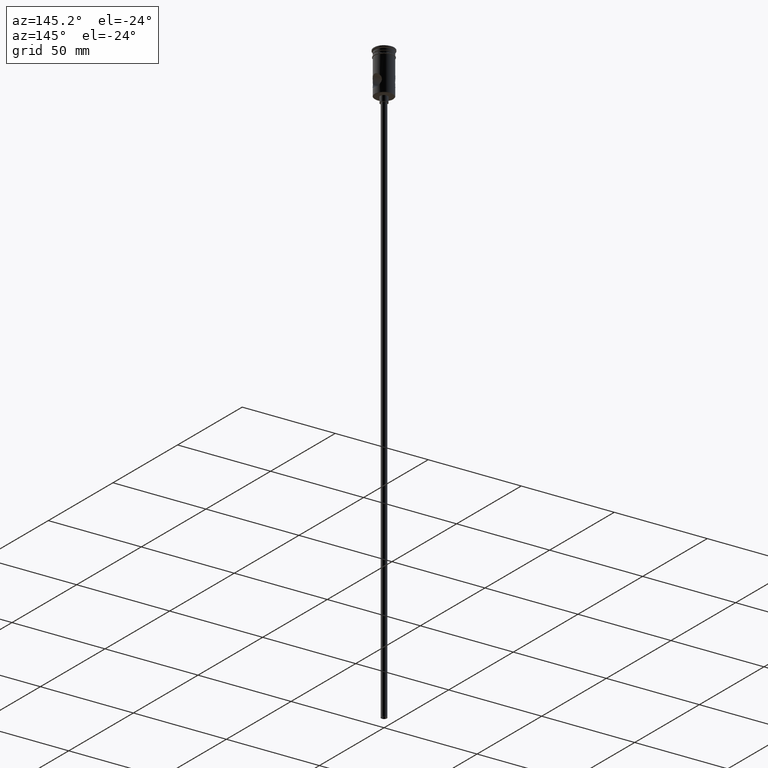
[diagram: clean part render]
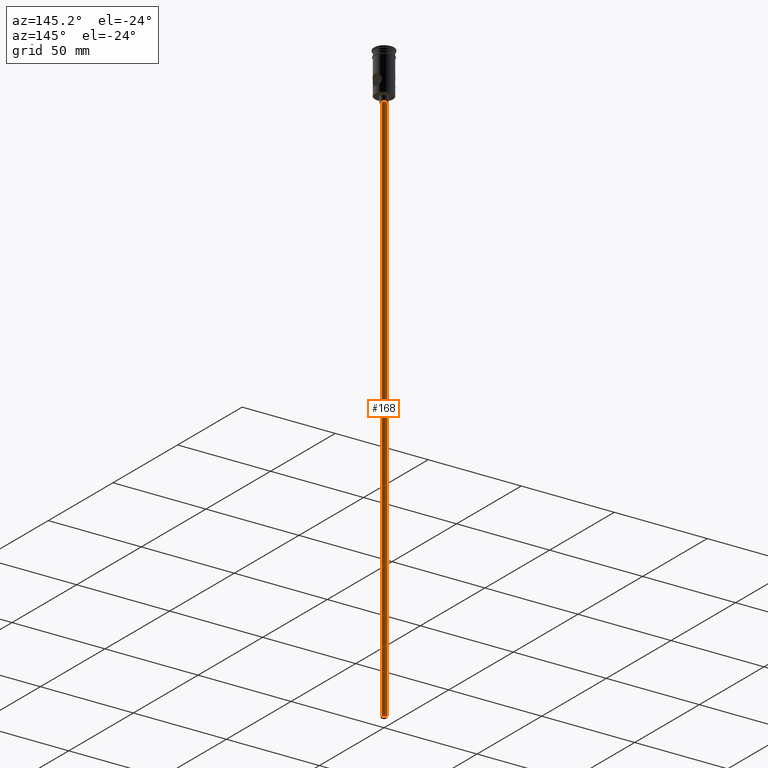
[diagram: same view with one face highlighted and labeled with its STEP entity id]
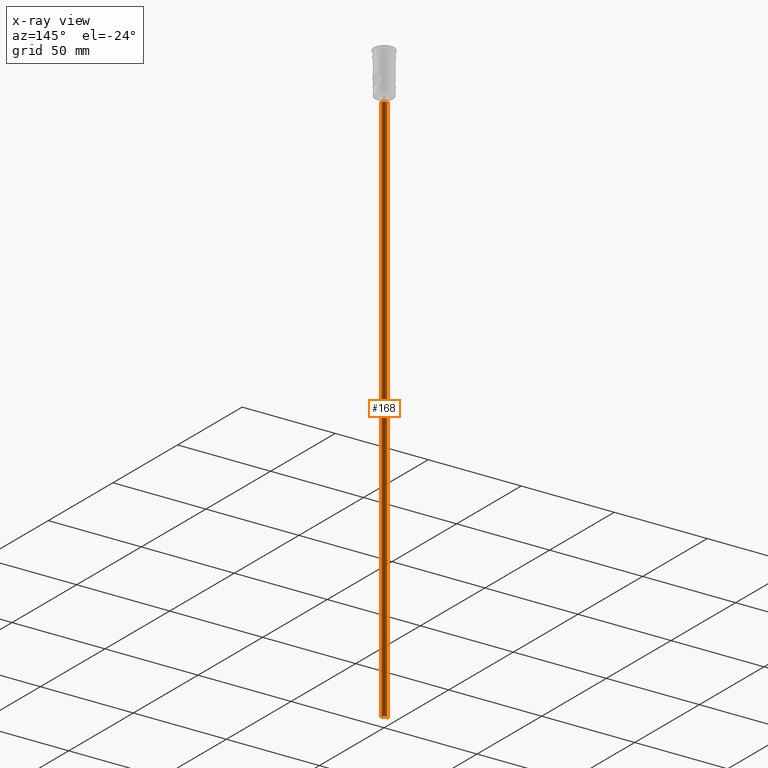
[diagram: x-ray of the same camera — body ghosted, the highlighted face saturated]
A machine part, auxiliary view. The second image highlights one B-rep face of the part: STEP entity #168.
The next image is the same camera in x-ray: the body ghosted, the highlighted face saturated — about 0% of this face is hidden behind the body in this view.
In plain terms, the highlighted cylindrical surface (edge-blend (fillet) strip) has radius 1.5 mm, axis along (-0, -0, 1).
Its self-contained STEP definition (entity closure, byte-faithful):
#21 = CIRCLE ( 'NONE', #256, 1.500000000000000222 ) ;
#64 = CARTESIAN_POINT ( 'NONE',  ( -1.500000000000000222, 1.836970198721030181E-16, -25.50000000000000000 ) ) ;
#88 = CARTESIAN_POINT ( 'NONE',  ( 1.500000000000000222, 0.000000000000000000, -25.50000000000000000 ) ) ;
#120 = EDGE_CURVE ( 'NONE', #407, #1075, #141, .T. ) ;
#134 = ORIENTED_EDGE ( 'NONE', *, *, #928, .F. ) ;
#141 = CIRCLE ( 'NONE', #392, 1.500000000000000222 ) ;
#156 = LINE ( 'NONE', #386, #1084 ) ;
#168 = ADVANCED_FACE ( 'NONE', ( #244 ), #809, .T. ) ;
#198 = CARTESIAN_POINT ( 'NONE',  ( 0.000000000000000000, 0.000000000000000000, -25.50000000000000000 ) ) ;
#244 = FACE_OUTER_BOUND ( 'NONE', #1061, .T. ) ;
#256 = AXIS2_PLACEMENT_3D ( 'NONE', #198, #874, #1329 ) ;
#258 = ORIENTED_EDGE ( 'NONE', *, *, #621, .T. ) ;
#304 = DIRECTION ( 'NONE',  ( -0.000000000000000000, -0.000000000000000000, 1.000000000000000000 ) ) ;
#386 = CARTESIAN_POINT ( 'NONE',  ( 1.500000000000000222, 0.000000000000000000, -322.5000000000000000 ) ) ;
#392 = AXIS2_PLACEMENT_3D ( 'NONE', #1363, #689, #594 ) ;
#401 = ORIENTED_EDGE ( 'NONE', *, *, #885, .T. ) ;
#407 = VERTEX_POINT ( 'NONE', #925 ) ;
#414 = CARTESIAN_POINT ( 'NONE',  ( -1.500000000000000222, 1.836970198721030181E-16, -322.5000000000000000 ) ) ;
#582 = DIRECTION ( 'NONE',  ( -0.000000000000000000, -0.000000000000000000, 1.000000000000000000 ) ) ;
#594 = DIRECTION ( 'NONE',  ( -1.000000000000000000, 0.000000000000000000, 0.000000000000000000 ) ) ;
#621 = EDGE_CURVE ( 'NONE', #1011, #1139, #21, .T. ) ;
#650 = CARTESIAN_POINT ( 'NONE',  ( 1.500000000000000222, 0.000000000000000000, -322.5000000000000000 ) ) ;
#689 = DIRECTION ( 'NONE',  ( 0.000000000000000000, 0.000000000000000000, -1.000000000000000000 ) ) ;
#696 = DIRECTION ( 'NONE',  ( 1.000000000000000000, 0.000000000000000000, 0.000000000000000000 ) ) ;
#698 = AXIS2_PLACEMENT_3D ( 'NONE', #829, #926, #696 ) ;
#809 = CYLINDRICAL_SURFACE ( 'NONE', #698, 1.500000000000000222 ) ;
#829 = CARTESIAN_POINT ( 'NONE',  ( 0.000000000000000000, 0.000000000000000000, -322.5000000000000000 ) ) ;
#874 = DIRECTION ( 'NONE',  ( 0.000000000000000000, 0.000000000000000000, -1.000000000000000000 ) ) ;
#885 = EDGE_CURVE ( 'NONE', #407, #1011, #1417, .T. ) ;
#925 = CARTESIAN_POINT ( 'NONE',  ( -1.500000000000000222, 1.836970198721030181E-16, -322.5000000000000000 ) ) ;
#926 = DIRECTION ( 'NONE',  ( -0.000000000000000000, -0.000000000000000000, 1.000000000000000000 ) ) ;
#928 = EDGE_CURVE ( 'NONE', #1075, #1139, #156, .T. ) ;
#967 = ORIENTED_EDGE ( 'NONE', *, *, #120, .F. ) ;
#1011 = VERTEX_POINT ( 'NONE', #64 ) ;
#1061 = EDGE_LOOP ( 'NONE', ( #967, #401, #258, #134 ) ) ;
#1075 = VERTEX_POINT ( 'NONE', #650 ) ;
#1084 = VECTOR ( 'NONE', #582, 1000.000000000000000 ) ;
#1139 = VERTEX_POINT ( 'NONE', #88 ) ;
#1179 = VECTOR ( 'NONE', #304, 1000.000000000000000 ) ;
#1329 = DIRECTION ( 'NONE',  ( -1.000000000000000000, 0.000000000000000000, 0.000000000000000000 ) ) ;
#1363 = CARTESIAN_POINT ( 'NONE',  ( 0.000000000000000000, 0.000000000000000000, -322.5000000000000000 ) ) ;
#1417 = LINE ( 'NONE', #414, #1179 ) ;